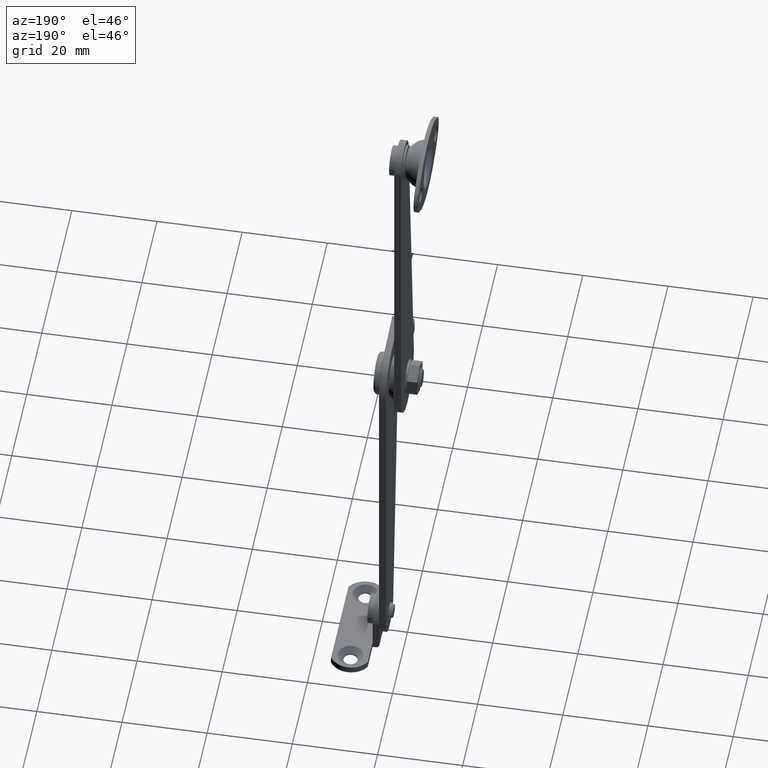
[diagram: clean part render]
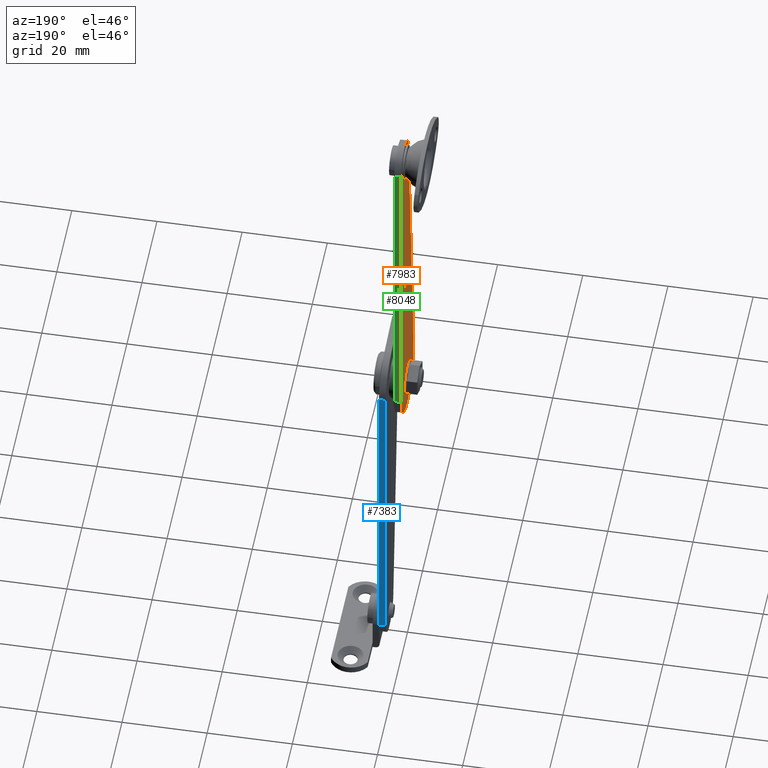
[diagram: same view with three faces highlighted in distinct colors, each labeled with its STEP entity id]
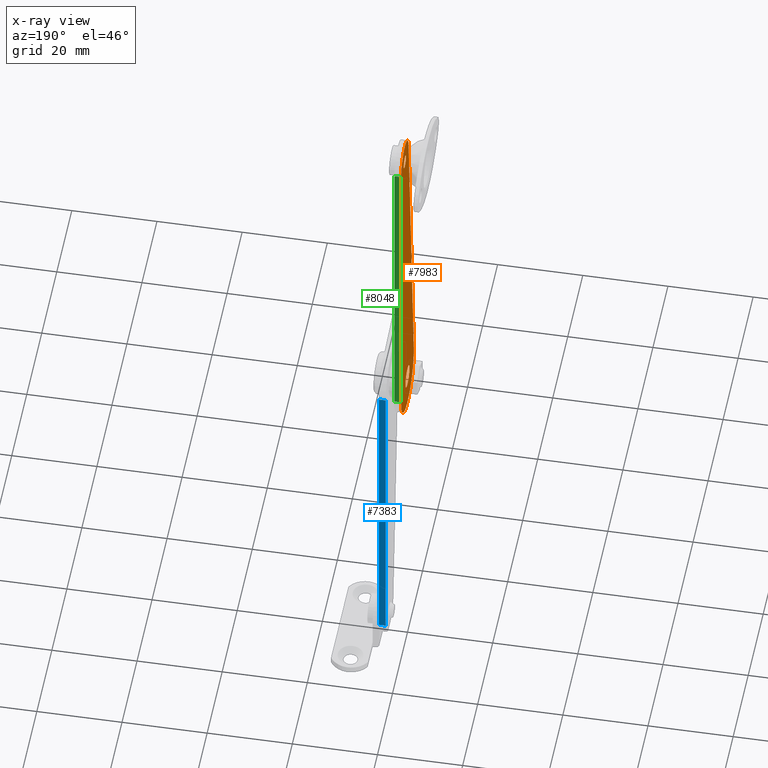
[diagram: x-ray of the same camera — body ghosted, the three highlighted faces saturated]
A machine part, auxiliary view with three faces highlighted in distinct colors.
The next image is the same camera in x-ray (body ghosted, the three faces saturated) — at least one of them is partly hidden behind the body in this view.
Their STEP definitions:

[orange] entity #7983 — the highlighted face is a freeform B-spline surface patch.
#7515=CARTESIAN_POINT('',(2.428613E-017,2.591985067631913,-0.203993649835449));
#7516=VERTEX_POINT('',#7515);
#7522=CARTESIAN_POINT('',(0.0,0.0,-2.600000000000000));
#7523=VERTEX_POINT('',#7522);
#7524=CARTESIAN_POINT('',(0.0,0.0,-2.600000000000000));
#7525=CARTESIAN_POINT('',(0.0,2.403415276557044,-2.600000000000000));
#7526=CARTESIAN_POINT('',(2.428613E-017,2.591985067631913,-0.203993649835450));
#7534=(BOUNDED_CURVE()B_SPLINE_CURVE(2,(#7524,#7525,#7526),.UNSPECIFIED.,.F.,.U.)B_SPLINE_CURVE_WITH_KNOTS((3,3),(0.0,0.236331300508027),.UNSPECIFIED.)CURVE()GEOMETRIC_REPRESENTATION_ITEM()RATIONAL_B_SPLINE_CURVE((1.0,0.723120658751339,0.969723355911493))REPRESENTATION_ITEM(''));
#7535=EDGE_CURVE('',#7523,#7516,#7534,.T.);
#7537=CARTESIAN_POINT('',(2.428613E-017,-2.591985067631913,0.203993649835449));
#7538=VERTEX_POINT('',#7537);
#7539=CARTESIAN_POINT('',(2.428613E-017,-2.591985067631913,0.203993649835449));
#7540=CARTESIAN_POINT('',(0.0,-2.600000000000001,0.102154279167369));
#7541=CARTESIAN_POINT('',(0.0,-2.600000000000000,0.0));
#7542=CARTESIAN_POINT('',(0.0,-2.600000000000001,-2.600000000000001));
#7543=CARTESIAN_POINT('',(0.0,0.0,-2.600000000000000));
#7551=(BOUNDED_CURVE()B_SPLINE_CURVE(2,(#7539,#7540,#7541,#7542,#7543),.UNSPECIFIED.,.F.,.U.)B_SPLINE_CURVE_WITH_KNOTS((3,2,3),(0.736331300508027,0.750000000000000,1.0),.UNSPECIFIED.)CURVE()GEOMETRIC_REPRESENTATION_ITEM()RATIONAL_B_SPLINE_CURVE((0.969723355911493,0.983986122435209,1.0,0.707106781186548,1.0))REPRESENTATION_ITEM(''));
#7552=EDGE_CURVE('',#7538,#7523,#7551,.T.);
#7628=CARTESIAN_POINT('',(0.0,0.0,2.600000000000000));
#7629=VERTEX_POINT('',#7628);
#7630=CARTESIAN_POINT('',(0.0,0.0,2.600000000000000));
#7631=CARTESIAN_POINT('',(0.0,-2.403415276557029,2.600000000000000));
#7632=CARTESIAN_POINT('',(2.428613E-017,-2.591985067631913,0.203993649835449));
#7640=(BOUNDED_CURVE()B_SPLINE_CURVE(2,(#7630,#7631,#7632),.UNSPECIFIED.,.F.,.U.)B_SPLINE_CURVE_WITH_KNOTS((3,3),(0.500000000000000,0.736331300508026),.UNSPECIFIED.)CURVE()GEOMETRIC_REPRESENTATION_ITEM()RATIONAL_B_SPLINE_CURVE((1.0,0.723120658751340,0.969723355911490))REPRESENTATION_ITEM(''));
#7641=EDGE_CURVE('',#7629,#7538,#7640,.T.);
#7643=CARTESIAN_POINT('',(2.428613E-017,2.591985067631913,-0.203993649835450));
#7644=CARTESIAN_POINT('',(0.0,2.600000000000001,-0.102154279167369));
#7645=CARTESIAN_POINT('',(0.0,2.600000000000000,0.0));
#7646=CARTESIAN_POINT('',(0.0,2.600000000000001,2.600000000000001));
#7647=CARTESIAN_POINT('',(0.0,0.0,2.600000000000000));
#7655=(BOUNDED_CURVE()B_SPLINE_CURVE(2,(#7643,#7644,#7645,#7646,#7647),.UNSPECIFIED.,.F.,.U.)B_SPLINE_CURVE_WITH_KNOTS((3,2,3),(0.236331300508027,0.250000000000000,0.500000000000000),.UNSPECIFIED.)CURVE()GEOMETRIC_REPRESENTATION_ITEM()RATIONAL_B_SPLINE_CURVE((0.969723355911492,0.983986122435209,1.0,0.707106781186548,1.0))REPRESENTATION_ITEM(''));
#7656=EDGE_CURVE('',#7516,#7629,#7655,.T.);
#7697=CARTESIAN_POINT('',(3.469447E-018,4.995419000587864,74.882311356257958));
#7698=VERTEX_POINT('',#7697);
#7704=CARTESIAN_POINT('',(0.0,3.500043000000000,73.500000000000000));
#7705=VERTEX_POINT('',#7704);
#7706=CARTESIAN_POINT('',(0.0,3.500043000000000,73.500000000000000));
#7707=CARTESIAN_POINT('',(0.0,4.886628737207769,73.499999999999986));
#7708=CARTESIAN_POINT('',(3.469447E-018,4.995419000587864,74.882311356257958));
#7716=(BOUNDED_CURVE()B_SPLINE_CURVE(2,(#7706,#7707,#7708),.UNSPECIFIED.,.F.,.U.)B_SPLINE_CURVE_WITH_KNOTS((3,3),(0.0,0.236331300598314),.UNSPECIFIED.)CURVE()GEOMETRIC_REPRESENTATION_ITEM()RATIONAL_B_SPLINE_CURVE((1.0,0.723120658645562,0.969723356099914))REPRESENTATION_ITEM(''));
#7717=EDGE_CURVE('',#7705,#7698,#7716,.T.);
#7719=CARTESIAN_POINT('',(3.469447E-018,2.004666999412135,75.117688643742042));
#7720=VERTEX_POINT('',#7719);
#7721=CARTESIAN_POINT('',(3.469447E-018,2.004666999412134,75.117688643742042));
#7722=CARTESIAN_POINT('',(0.0,2.000042999999999,75.058935160662472));
#7723=CARTESIAN_POINT('',(0.0,2.000043000000000,75.0));
#7724=CARTESIAN_POINT('',(0.0,2.000043000000000,73.500000000000000));
#7725=CARTESIAN_POINT('',(0.0,3.500043000000000,73.500000000000000));
#7733=(BOUNDED_CURVE()B_SPLINE_CURVE(2,(#7721,#7722,#7723,#7724,#7725),.UNSPECIFIED.,.F.,.U.)B_SPLINE_CURVE_WITH_KNOTS((3,2,3),(0.736331300598314,0.750000000000000,1.0),.UNSPECIFIED.)CURVE()GEOMETRIC_REPRESENTATION_ITEM()RATIONAL_B_SPLINE_CURVE((0.969723356099914,0.983986122540986,1.0,0.707106781186548,1.0))REPRESENTATION_ITEM(''));
#7734=EDGE_CURVE('',#7720,#7705,#7733,.T.);
#7810=CARTESIAN_POINT('',(0.0,3.500043000000000,76.500000000000000));
#7811=VERTEX_POINT('',#7810);
#7812=CARTESIAN_POINT('',(0.0,3.500043000000000,76.500000000000000));
#7813=CARTESIAN_POINT('',(0.0,2.113457262792231,76.500000000000000));
#7814=CARTESIAN_POINT('',(3.469447E-018,2.004666999412135,75.117688643742042));
#7822=(BOUNDED_CURVE()B_SPLINE_CURVE(2,(#7812,#7813,#7814),.UNSPECIFIED.,.F.,.U.)B_SPLINE_CURVE_WITH_KNOTS((3,3),(0.500000000000000,0.736331300598314),.UNSPECIFIED.)CURVE()GEOMETRIC_REPRESENTATION_ITEM()RATIONAL_B_SPLINE_CURVE((1.0,0.723120658645561,0.969723356099914))REPRESENTATION_ITEM(''));
#7823=EDGE_CURVE('',#7811,#7720,#7822,.T.);
#7825=CARTESIAN_POINT('',(3.469447E-018,4.995419000587864,74.882311356257958));
#7826=CARTESIAN_POINT('',(0.0,5.000043000000001,74.941064839337528));
#7827=CARTESIAN_POINT('',(0.0,5.000043000000000,75.0));
#7828=CARTESIAN_POINT('',(0.0,5.000043000000000,76.500000000000000));
#7829=CARTESIAN_POINT('',(0.0,3.500043000000000,76.500000000000000));
#7837=(BOUNDED_CURVE()B_SPLINE_CURVE(2,(#7825,#7826,#7827,#7828,#7829),.UNSPECIFIED.,.F.,.U.)B_SPLINE_CURVE_WITH_KNOTS((3,2,3),(0.236331300598313,0.250000000000000,0.500000000000000),.UNSPECIFIED.)CURVE()GEOMETRIC_REPRESENTATION_ITEM()RATIONAL_B_SPLINE_CURVE((0.969723356099914,0.983986122540986,1.0,0.707106781186548,1.0))REPRESENTATION_ITEM(''));
#7838=EDGE_CURVE('',#7698,#7811,#7837,.T.);
#7914=CARTESIAN_POINT('',(0.0,9.349102831688899,-12.910768085513929));
#7915=CARTESIAN_POINT('',(0.0,-9.348200115655764,-12.910768085513929));
#7916=CARTESIAN_POINT('',(0.0,9.349102831688898,84.414942591463529));
#7917=CARTESIAN_POINT('',(0.0,-9.348200115655764,84.414942591463529));
#7918=B_SPLINE_SURFACE_WITH_KNOTS('',1,1,((#7914,#7916),(#7915,#7917)),.UNSPECIFIED.,.F.,.F.,.U.,(2,2),(2,2),(0.0,18.697302947344660),(0.0,97.325710676977451),.UNSPECIFIED.);
#7919=CARTESIAN_POINT('',(0.0,-1.478226280506680,75.465655420631492));
#7920=VERTEX_POINT('',#7919);
#7921=CARTESIAN_POINT('',(0.0,8.499992998506340,75.022360957866596));
#7922=VERTEX_POINT('',#7921);
#7923=CARTESIAN_POINT('',(0.0,-1.478226280506681,75.465655420631492));
#7924=CARTESIAN_POINT('',(0.0,-1.034788618051254,80.206397168741674));
#7925=CARTESIAN_POINT('',(0.0,3.721955164071165,79.995073071681446));
#7926=CARTESIAN_POINT('',(0.0,8.478698946193589,79.783748974621247));
#7927=CARTESIAN_POINT('',(0.0,8.499992998506313,75.022360957866596));
#7935=(BOUNDED_CURVE()B_SPLINE_CURVE(2,(#7923,#7924,#7925,#7926,#7927),.UNSPECIFIED.,.F.,.U.)B_SPLINE_CURVE_WITH_KNOTS((3,2,3),(0.0,0.500000000000000,1.0),.UNSPECIFIED.)CURVE()GEOMETRIC_REPRESENTATION_ITEM()RATIONAL_B_SPLINE_CURVE((1.0,0.724171862791046,1.0,0.724171862791046,1.0))REPRESENTATION_ITEM(''));
#7936=EDGE_CURVE('',#7920,#7922,#7935,.T.);
#7937=ORIENTED_EDGE('',*,*,#7936,.T.);
#7938=CARTESIAN_POINT('',(0.0,8.499998009850831,0.005816573899522));
#7939=VERTEX_POINT('',#7938);
#7940=CARTESIAN_POINT('',(0.0,8.499992998506340,75.022360957866596));
#7941=CARTESIAN_POINT('',(0.0,8.499998009850831,0.005816573899522));
#7942=QUASI_UNIFORM_CURVE('',1,(#7940,#7941),.UNSPECIFIED.,.F.,.U.);
#7943=EDGE_CURVE('',#7922,#7939,#7942,.T.);
#7944=ORIENTED_EDGE('',*,*,#7943,.T.);
#7945=CARTESIAN_POINT('',(0.0,-8.463057776861380,0.791614215073323));
#7946=VERTEX_POINT('',#7945);
#7947=CARTESIAN_POINT('',(0.0,8.499998009850831,0.005816573899522));
#7948=CARTESIAN_POINT('',(0.0,8.503478766165232,-5.080755393769863));
#7949=CARTESIAN_POINT('',(0.0,4.022548644652178,-7.487930448488884));
#7950=CARTESIAN_POINT('',(0.0,-0.458381476860879,-9.895105503207905));
#7951=CARTESIAN_POINT('',(0.0,-4.697578663235845,-7.083978733925685));
#7952=CARTESIAN_POINT('',(0.0,-8.936775849610811,-4.272851964643464));
#7953=CARTESIAN_POINT('',(0.0,-8.463057776861378,0.791614215073320));
#7961=(BOUNDED_CURVE()B_SPLINE_CURVE(2,(#7947,#7948,#7949,#7950,#7951,#7952,#7953),.UNSPECIFIED.,.F.,.U.)B_SPLINE_CURVE_WITH_KNOTS((3,2,2,3),(0.0,0.333333333333333,0.666666666666667,1.0),.UNSPECIFIED.)CURVE()GEOMETRIC_REPRESENTATION_ITEM()RATIONAL_B_SPLINE_CURVE((1.0,0.858090345269903,1.0,0.858090345269903,1.0,0.858090345269903,1.0))REPRESENTATION_ITEM(''));
#7962=EDGE_CURVE('',#7939,#7946,#7961,.T.);
#7963=ORIENTED_EDGE('',*,*,#7962,.T.);
#7964=CARTESIAN_POINT('',(0.0,-8.463057776861380,0.791614215073323));
#7965=CARTESIAN_POINT('',(0.0,-1.478226280506680,75.465655420631492));
#7966=QUASI_UNIFORM_CURVE('',1,(#7964,#7965),.UNSPECIFIED.,.F.,.U.);
#7967=EDGE_CURVE('',#7946,#7920,#7966,.T.);
#7968=ORIENTED_EDGE('',*,*,#7967,.T.);
#7969=EDGE_LOOP('',(#7937,#7944,#7963,#7968));
#7970=FACE_OUTER_BOUND('',#7969,.T.);
#7971=ORIENTED_EDGE('',*,*,#7823,.T.);
#7972=ORIENTED_EDGE('',*,*,#7734,.T.);
#7973=ORIENTED_EDGE('',*,*,#7717,.T.);
#7974=ORIENTED_EDGE('',*,*,#7838,.T.);
#7975=EDGE_LOOP('',(#7971,#7972,#7973,#7974));
#7976=FACE_BOUND('',#7975,.T.);
#7977=ORIENTED_EDGE('',*,*,#7641,.T.);
#7978=ORIENTED_EDGE('',*,*,#7552,.T.);
#7979=ORIENTED_EDGE('',*,*,#7535,.T.);
#7980=ORIENTED_EDGE('',*,*,#7656,.T.);
#7981=EDGE_LOOP('',(#7977,#7978,#7979,#7980));
#7982=FACE_BOUND('',#7981,.T.);
#7983=ADVANCED_FACE('',(#7970,#7976,#7982),#7918,.T.);

[blue] entity #7383 — the highlighted face is a freeform B-spline surface patch.
#6999=CARTESIAN_POINT('',(3.599991000000080,8.499954011509310,-74.977866710410609));
#7000=VERTEX_POINT('',#6999);
#7061=CARTESIAN_POINT('',(3.599991000000080,8.499993005675012,0.010904287041642));
#7062=VERTEX_POINT('',#7061);
#7076=CARTESIAN_POINT('',(3.599991000000080,8.499993005675012,0.010904287041642));
#7077=CARTESIAN_POINT('',(3.599991000000080,8.499954011509310,-74.977866710410609));
#7078=QUASI_UNIFORM_CURVE('',1,(#7076,#7077),.UNSPECIFIED.,.F.,.U.);
#7079=EDGE_CURVE('',#7062,#7000,#7078,.T.);
#7202=CARTESIAN_POINT('',(5.199997000000000,8.499954011509310,-74.977866710410396));
#7203=VERTEX_POINT('',#7202);
#7219=CARTESIAN_POINT('',(5.199997000000000,8.499993005675012,0.010904287039686));
#7220=VERTEX_POINT('',#7219);
#7221=CARTESIAN_POINT('',(5.199997000000000,8.499993005675012,0.010904287039686));
#7222=CARTESIAN_POINT('',(5.199997000000000,8.499954011509310,-74.977866710410396));
#7223=QUASI_UNIFORM_CURVE('',1,(#7221,#7222),.UNSPECIFIED.,.F.,.U.);
#7224=EDGE_CURVE('',#7220,#7203,#7223,.T.);
#7357=CARTESIAN_POINT('',(5.199997000000000,8.499954011509310,-74.977866710410396));
#7358=CARTESIAN_POINT('',(3.599991000000080,8.499954011509310,-74.977866710410609));
#7359=QUASI_UNIFORM_CURVE('',1,(#7357,#7358),.UNSPECIFIED.,.F.,.U.);
#7360=EDGE_CURVE('',#7203,#7000,#7359,.T.);
#7368=CARTESIAN_POINT('',(5.279917245823394,8.499952063750438,-78.723556380331502));
#7369=CARTESIAN_POINT('',(5.279917245823394,8.499994953434577,3.756595297866248));
#7370=CARTESIAN_POINT('',(3.520070782787022,8.499952063750438,-78.723556380331502));
#7371=CARTESIAN_POINT('',(3.520070782787022,8.499994953434577,3.756595297866248));
#7372=B_SPLINE_SURFACE_WITH_KNOTS('',1,1,((#7368,#7370),(#7369,#7371)),.UNSPECIFIED.,.F.,.F.,.U.,(2,2),(2,2),(0.0,82.480151678208898),(0.041708361393958,0.958291623704881),.UNSPECIFIED.);
#7373=CARTESIAN_POINT('',(5.199997000000000,8.499993005675012,0.010904287039686));
#7374=CARTESIAN_POINT('',(3.599991000000080,8.499993005675012,0.010904287041642));
#7375=QUASI_UNIFORM_CURVE('',1,(#7373,#7374),.UNSPECIFIED.,.F.,.U.);
#7376=EDGE_CURVE('',#7220,#7062,#7375,.T.);
#7377=ORIENTED_EDGE('',*,*,#7376,.F.);
#7378=ORIENTED_EDGE('',*,*,#7224,.T.);
#7379=ORIENTED_EDGE('',*,*,#7360,.T.);
#7380=ORIENTED_EDGE('',*,*,#7079,.F.);
#7381=EDGE_LOOP('',(#7377,#7378,#7379,#7380));
#7382=FACE_OUTER_BOUND('',#7381,.T.);
#7383=ADVANCED_FACE('',(#7382),#7372,.F.);

[green] entity #8048 — the highlighted face is a freeform B-spline surface patch.
#7851=CARTESIAN_POINT('',(1.599998999999965,8.499992998506340,75.022360957866596));
#7852=VERTEX_POINT('',#7851);
#7875=CARTESIAN_POINT('',(1.599998999999965,8.499998009850831,0.005816573899522));
#7876=VERTEX_POINT('',#7875);
#7894=CARTESIAN_POINT('',(1.599998999999965,8.499992998506340,75.022360957866596));
#7895=CARTESIAN_POINT('',(1.599998999999965,8.499998009850831,0.005816573899522));
#7896=QUASI_UNIFORM_CURVE('',1,(#7894,#7895),.UNSPECIFIED.,.F.,.U.);
#7897=EDGE_CURVE('',#7852,#7876,#7896,.T.);
#7921=CARTESIAN_POINT('',(0.0,8.499992998506340,75.022360957866596));
#7922=VERTEX_POINT('',#7921);
#7938=CARTESIAN_POINT('',(0.0,8.499998009850831,0.005816573899522));
#7939=VERTEX_POINT('',#7938);
#7940=CARTESIAN_POINT('',(0.0,8.499992998506340,75.022360957866596));
#7941=CARTESIAN_POINT('',(0.0,8.499998009850831,0.005816573899522));
#7942=QUASI_UNIFORM_CURVE('',1,(#7940,#7941),.UNSPECIFIED.,.F.,.U.);
#7943=EDGE_CURVE('',#7922,#7939,#7942,.T.);
#8025=CARTESIAN_POINT('',(0.0,8.499998009850831,0.005816573899522));
#8026=CARTESIAN_POINT('',(1.599998999999965,8.499998009850831,0.005816573899522));
#8027=QUASI_UNIFORM_CURVE('',1,(#8025,#8026),.UNSPECIFIED.,.F.,.U.);
#8028=EDGE_CURVE('',#7939,#7876,#8027,.T.);
#8033=CARTESIAN_POINT('',(1.679918901889917,8.499992748189595,78.769438612852426));
#8034=CARTESIAN_POINT('',(1.679918901889917,8.499998260167617,-3.741261751786471));
#8035=CARTESIAN_POINT('',(-0.079919987720587,8.499992748189595,78.769438612852426));
#8036=CARTESIAN_POINT('',(-0.079919987720587,8.499998260167617,-3.741261751786471));
#8037=B_SPLINE_SURFACE_WITH_KNOTS('',1,1,((#8033,#8035),(#8034,#8036)),.UNSPECIFIED.,.F.,.F.,.U.,(2,2),(2,2),(0.0,82.510700364639078),(0.041708358416706,0.958291686286777),.UNSPECIFIED.);
#8038=ORIENTED_EDGE('',*,*,#7897,.T.);
#8039=ORIENTED_EDGE('',*,*,#8028,.F.);
#8040=ORIENTED_EDGE('',*,*,#7943,.F.);
#8041=CARTESIAN_POINT('',(0.0,8.499992998506340,75.022360957866596));
#8042=CARTESIAN_POINT('',(1.599998999999965,8.499992998506340,75.022360957866596));
#8043=QUASI_UNIFORM_CURVE('',1,(#8041,#8042),.UNSPECIFIED.,.F.,.U.);
#8044=EDGE_CURVE('',#7922,#7852,#8043,.T.);
#8045=ORIENTED_EDGE('',*,*,#8044,.T.);
#8046=EDGE_LOOP('',(#8038,#8039,#8040,#8045));
#8047=FACE_OUTER_BOUND('',#8046,.T.);
#8048=ADVANCED_FACE('',(#8047),#8037,.T.);